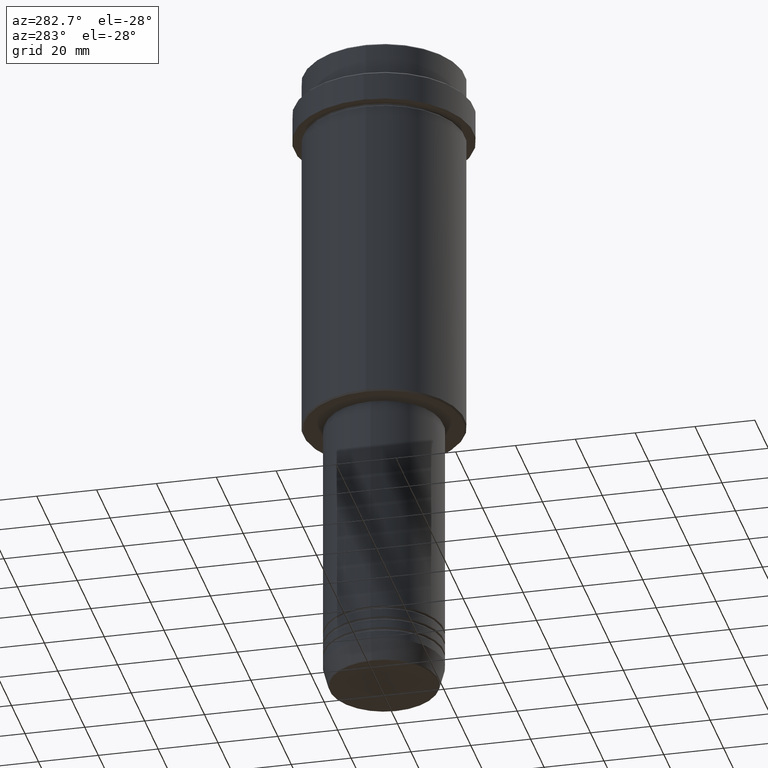
[diagram: clean part render]
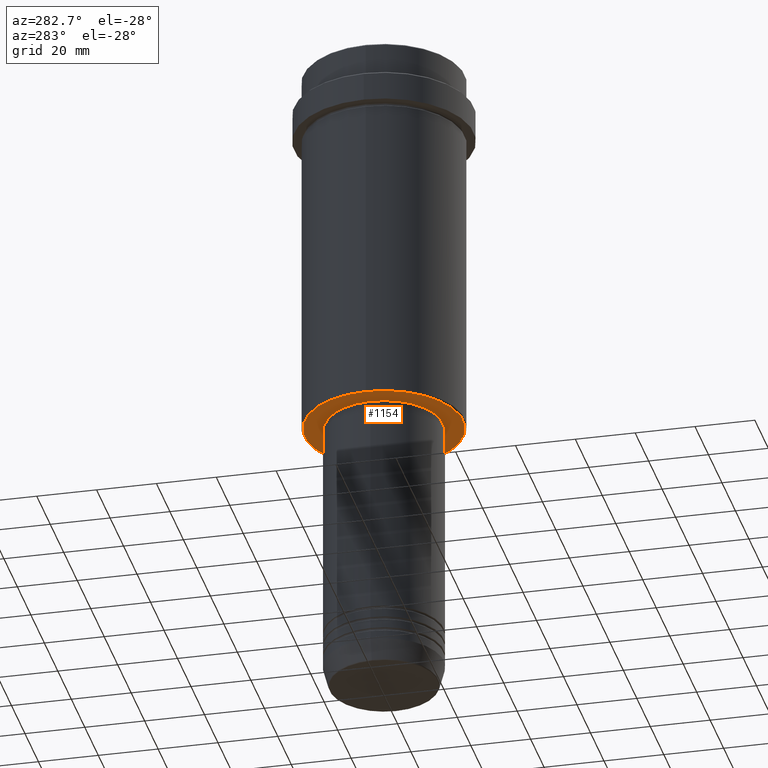
[diagram: same view with one face highlighted and labeled with its STEP entity id]
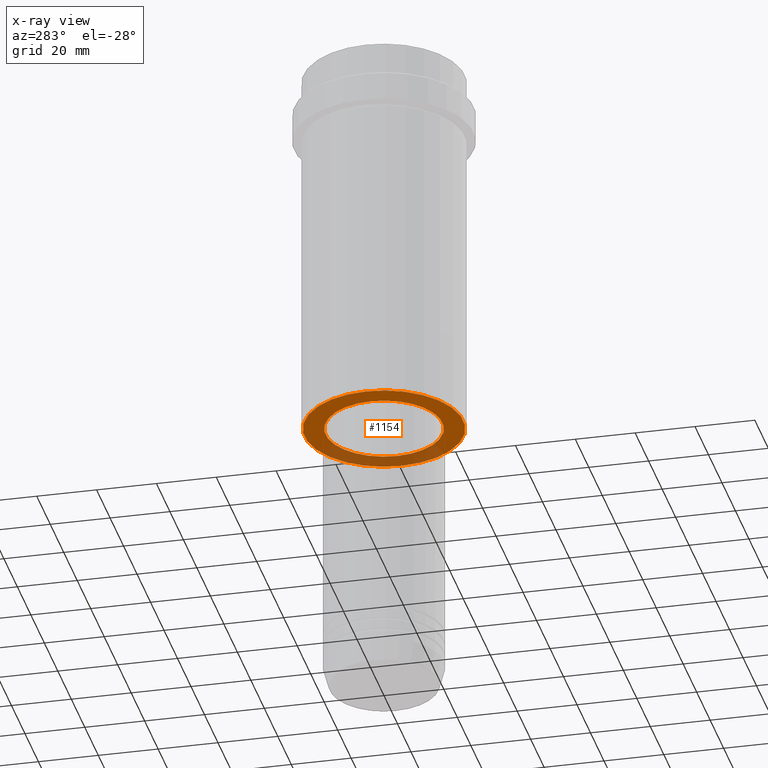
[diagram: x-ray of the same camera — body ghosted, the highlighted face saturated]
A machine part, auxiliary view. The second image highlights one B-rep face of the part: STEP entity #1154.
The next image is the same camera in x-ray: the body ghosted, the highlighted face saturated — about 29% of this face is hidden behind the body in this view.
In plain terms, the highlighted planar face has unit normal (0, 0, -1).
Its self-contained STEP definition (entity closure, byte-faithful):
#4 = CIRCLE ( 'NONE', #397, 19.50000000000000000 ) ;
#134 = DIRECTION ( 'NONE',  ( -0.000000000000000000, -0.000000000000000000, 1.000000000000000000 ) ) ;
#144 = EDGE_CURVE ( 'NONE', #895, #879, #4, .T. ) ;
#180 = AXIS2_PLACEMENT_3D ( 'NONE', #1214, #570, #237 ) ;
#188 = PLANE ( 'NONE',  #981 ) ;
#190 = AXIS2_PLACEMENT_3D ( 'NONE', #595, #134, #572 ) ;
#220 = CARTESIAN_POINT ( 'NONE',  ( 19.50000000000000000, 0.000000000000000000, -128.0000000000000284 ) ) ;
#230 = EDGE_CURVE ( 'NONE', #893, #938, #812, .T. ) ;
#237 = DIRECTION ( 'NONE',  ( -1.000000000000000000, 0.000000000000000000, 0.000000000000000000 ) ) ;
#274 = EDGE_LOOP ( 'NONE', ( #591, #853 ) ) ;
#279 = DIRECTION ( 'NONE',  ( 0.000000000000000000, 0.000000000000000000, -1.000000000000000000 ) ) ;
#313 = DIRECTION ( 'NONE',  ( 1.000000000000000000, 0.000000000000000000, 0.000000000000000000 ) ) ;
#316 = DIRECTION ( 'NONE',  ( -1.000000000000000000, 0.000000000000000000, -0.000000000000000000 ) ) ;
#385 = ORIENTED_EDGE ( 'NONE', *, *, #1348, .T. ) ;
#397 = AXIS2_PLACEMENT_3D ( 'NONE', #1160, #969, #313 ) ;
#448 = FACE_BOUND ( 'NONE', #274, .T. ) ;
#555 = ORIENTED_EDGE ( 'NONE', *, *, #230, .T. ) ;
#563 = CIRCLE ( 'NONE', #904, 26.49999999999999645 ) ;
#570 = DIRECTION ( 'NONE',  ( 0.000000000000000000, 0.000000000000000000, -1.000000000000000000 ) ) ;
#572 = DIRECTION ( 'NONE',  ( 1.000000000000000000, 0.000000000000000000, 0.000000000000000000 ) ) ;
#591 = ORIENTED_EDGE ( 'NONE', *, *, #144, .T. ) ;
#595 = CARTESIAN_POINT ( 'NONE',  ( 0.000000000000000000, 0.000000000000000000, -128.0000000000000284 ) ) ;
#639 = DIRECTION ( 'NONE',  ( 0.000000000000000000, 0.000000000000000000, -1.000000000000000000 ) ) ;
#722 = DIRECTION ( 'NONE',  ( -1.000000000000000000, 0.000000000000000000, 0.000000000000000000 ) ) ;
#807 = CARTESIAN_POINT ( 'NONE',  ( -26.49999999999999645, 3.275930187719169552E-15, -128.0000000000000284 ) ) ;
#812 = CIRCLE ( 'NONE', #180, 26.49999999999999645 ) ;
#829 = CARTESIAN_POINT ( 'NONE',  ( 0.000000000000000000, 0.000000000000000000, -128.0000000000000284 ) ) ;
#853 = ORIENTED_EDGE ( 'NONE', *, *, #1175, .T. ) ;
#879 = VERTEX_POINT ( 'NONE', #896 ) ;
#880 = FACE_OUTER_BOUND ( 'NONE', #1109, .T. ) ;
#893 = VERTEX_POINT ( 'NONE', #1196 ) ;
#895 = VERTEX_POINT ( 'NONE', #220 ) ;
#896 = CARTESIAN_POINT ( 'NONE',  ( -19.50000000000000000, 2.388061258337338939E-15, -128.0000000000000284 ) ) ;
#904 = AXIS2_PLACEMENT_3D ( 'NONE', #829, #279, #722 ) ;
#938 = VERTEX_POINT ( 'NONE', #807 ) ;
#969 = DIRECTION ( 'NONE',  ( -0.000000000000000000, -0.000000000000000000, 1.000000000000000000 ) ) ;
#981 = AXIS2_PLACEMENT_3D ( 'NONE', #1287, #639, #316 ) ;
#1109 = EDGE_LOOP ( 'NONE', ( #555, #385 ) ) ;
#1154 = ADVANCED_FACE ( 'NONE', ( #880, #448 ), #188, .T. ) ;
#1160 = CARTESIAN_POINT ( 'NONE',  ( 0.000000000000000000, 0.000000000000000000, -128.0000000000000284 ) ) ;
#1175 = EDGE_CURVE ( 'NONE', #879, #895, #1308, .T. ) ;
#1196 = CARTESIAN_POINT ( 'NONE',  ( 26.49999999999999645, 0.000000000000000000, -128.0000000000000284 ) ) ;
#1214 = CARTESIAN_POINT ( 'NONE',  ( 0.000000000000000000, 0.000000000000000000, -128.0000000000000284 ) ) ;
#1287 = CARTESIAN_POINT ( 'NONE',  ( 0.000000000000000000, 27.00000000000000000, -128.0000000000000284 ) ) ;
#1308 = CIRCLE ( 'NONE', #190, 19.50000000000000000 ) ;
#1348 = EDGE_CURVE ( 'NONE', #938, #893, #563, .T. ) ;